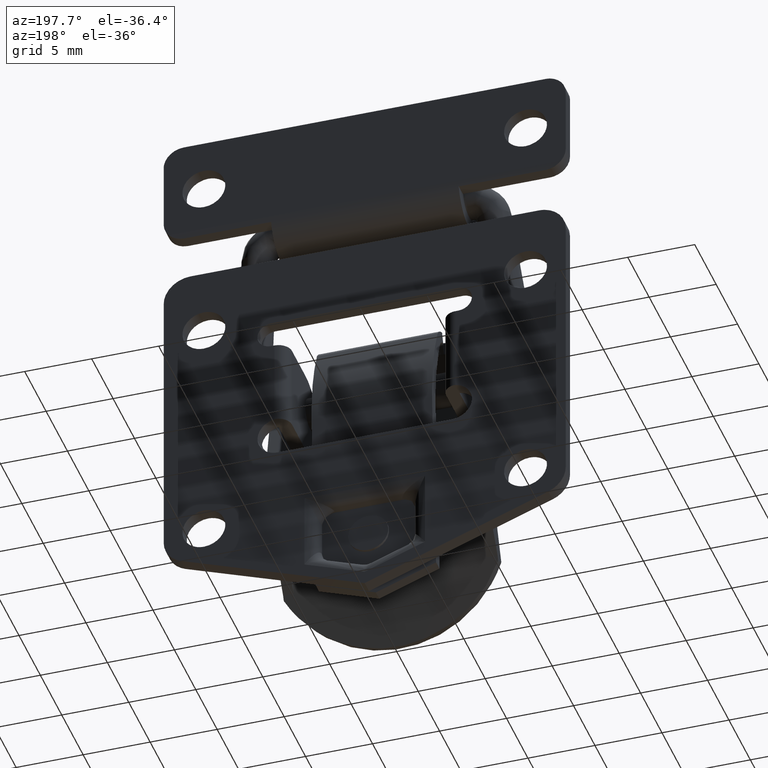
[diagram: clean part render]
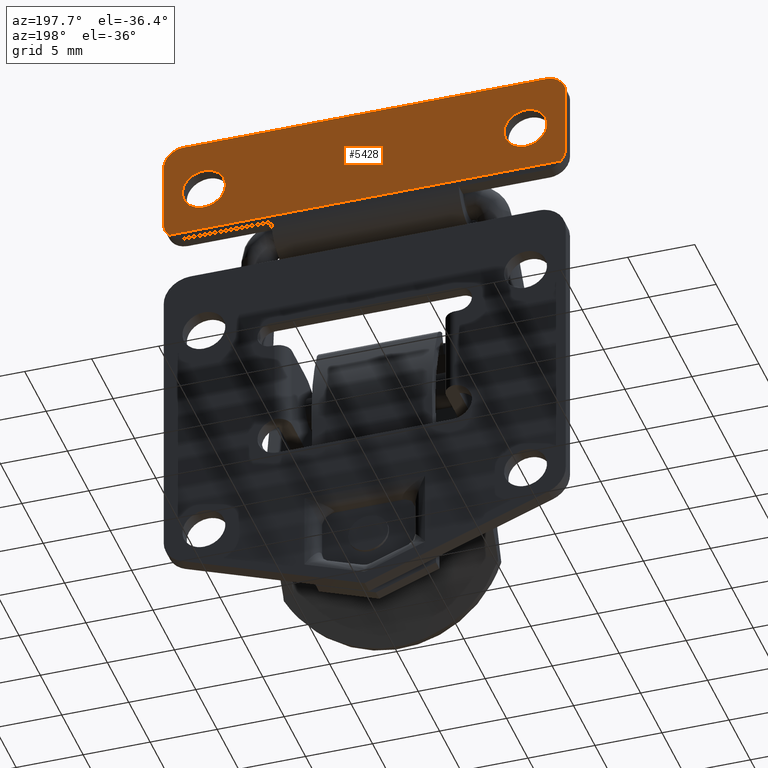
[diagram: same view with one face highlighted and labeled with its STEP entity id]
A machine part, auxiliary view. The second image highlights one B-rep face of the part: STEP entity #5428.
In plain terms, the highlighted face is a freeform B-spline surface patch.
Its self-contained STEP definition (entity closure, byte-faithful):
#4347=CARTESIAN_POINT('',(2.499999999999945,-12.0,5.350000000000000));
#4348=VERTEX_POINT('',#4347);
#4349=CARTESIAN_POINT('',(2.499999999999945,-13.595067733970041,3.875534553202281));
#4350=VERTEX_POINT('',#4349);
#4351=CARTESIAN_POINT('',(2.499999999999945,-12.0,5.350000000000000));
#4352=CARTESIAN_POINT('',(2.499999999999945,-13.479024786582951,5.350000000000000));
#4353=CARTESIAN_POINT('',(2.499999999999945,-13.595067733970035,3.875534553202281));
#4361=(BOUNDED_CURVE()B_SPLINE_CURVE(2,(#4351,#4352,#4353),.UNSPECIFIED.,.F.,.U.)B_SPLINE_CURVE_WITH_KNOTS((3,3),(0.0,0.236331300624657),.UNSPECIFIED.)CURVE()GEOMETRIC_REPRESENTATION_ITEM()RATIONAL_B_SPLINE_CURVE((1.0,0.723120658614698,0.969723356154892))REPRESENTATION_ITEM(''));
#4362=EDGE_CURVE('',#4348,#4350,#4361,.T.);
#4403=CARTESIAN_POINT('',(2.499999999999945,-10.404932266029970,3.624465446797719));
#4404=VERTEX_POINT('',#4403);
#4410=CARTESIAN_POINT('',(2.499999999999945,-10.404932266029968,3.624465446797719));
#4411=CARTESIAN_POINT('',(2.499999999999945,-10.400000000000002,3.687135828749825));
#4412=CARTESIAN_POINT('',(2.499999999999945,-10.400000000000000,3.750000000000000));
#4413=CARTESIAN_POINT('',(2.499999999999945,-10.400000000000000,5.349999999999999));
#4414=CARTESIAN_POINT('',(2.499999999999945,-12.0,5.350000000000000));
#4422=(BOUNDED_CURVE()B_SPLINE_CURVE(2,(#4410,#4411,#4412,#4413,#4414),.UNSPECIFIED.,.F.,.U.)B_SPLINE_CURVE_WITH_KNOTS((3,2,3),(0.736331300624657,0.750000000000000,1.0),.UNSPECIFIED.)CURVE()GEOMETRIC_REPRESENTATION_ITEM()RATIONAL_B_SPLINE_CURVE((0.969723356154891,0.983986122571850,1.0,0.707106781186548,1.0))REPRESENTATION_ITEM(''));
#4423=EDGE_CURVE('',#4404,#4348,#4422,.T.);
#4446=CARTESIAN_POINT('',(2.499999999999945,-12.0,2.150000000000000));
#4447=VERTEX_POINT('',#4446);
#4448=CARTESIAN_POINT('',(2.499999999999945,-13.595067733970035,3.875534553202281));
#4449=CARTESIAN_POINT('',(2.499999999999945,-13.600000000000001,3.812864171250176));
#4450=CARTESIAN_POINT('',(2.499999999999945,-13.600000000000000,3.750000000000000));
#4451=CARTESIAN_POINT('',(2.499999999999945,-13.600000000000003,2.150000000000000));
#4452=CARTESIAN_POINT('',(2.499999999999945,-12.0,2.150000000000000));
#4460=(BOUNDED_CURVE()B_SPLINE_CURVE(2,(#4448,#4449,#4450,#4451,#4452),.UNSPECIFIED.,.F.,.U.)B_SPLINE_CURVE_WITH_KNOTS((3,2,3),(0.236331300624657,0.250000000000000,0.500000000000000),.UNSPECIFIED.)CURVE()GEOMETRIC_REPRESENTATION_ITEM()RATIONAL_B_SPLINE_CURVE((0.969723356154892,0.983986122571850,1.0,0.707106781186548,1.0))REPRESENTATION_ITEM(''));
#4461=EDGE_CURVE('',#4350,#4447,#4460,.T.);
#4463=CARTESIAN_POINT('',(2.499999999999945,-12.0,2.150000000000000));
#4464=CARTESIAN_POINT('',(2.499999999999946,-10.520975213417056,2.150000000000000));
#4465=CARTESIAN_POINT('',(2.499999999999945,-10.404932266029963,3.624465446797719));
#4473=(BOUNDED_CURVE()B_SPLINE_CURVE(2,(#4463,#4464,#4465),.UNSPECIFIED.,.F.,.U.)B_SPLINE_CURVE_WITH_KNOTS((3,3),(0.500000000000000,0.736331300624657),.UNSPECIFIED.)CURVE()GEOMETRIC_REPRESENTATION_ITEM()RATIONAL_B_SPLINE_CURVE((1.0,0.723120658614698,0.969723356154891))REPRESENTATION_ITEM(''));
#4474=EDGE_CURVE('',#4447,#4404,#4473,.T.);
#4529=CARTESIAN_POINT('',(2.499999999999945,12.0,5.350000000000000));
#4530=VERTEX_POINT('',#4529);
#4531=CARTESIAN_POINT('',(2.499999999999945,10.404932266029970,3.875534553202281));
#4532=VERTEX_POINT('',#4531);
#4533=CARTESIAN_POINT('',(2.499999999999945,12.0,5.350000000000000));
#4534=CARTESIAN_POINT('',(2.499999999999945,10.520975213417053,5.350000000000000));
#4535=CARTESIAN_POINT('',(2.499999999999945,10.404932266029965,3.875534553202281));
#4543=(BOUNDED_CURVE()B_SPLINE_CURVE(2,(#4533,#4534,#4535),.UNSPECIFIED.,.F.,.U.)B_SPLINE_CURVE_WITH_KNOTS((3,3),(0.0,0.236331300624657),.UNSPECIFIED.)CURVE()GEOMETRIC_REPRESENTATION_ITEM()RATIONAL_B_SPLINE_CURVE((1.0,0.723120658614698,0.969723356154892))REPRESENTATION_ITEM(''));
#4544=EDGE_CURVE('',#4530,#4532,#4543,.T.);
#4585=CARTESIAN_POINT('',(2.499999999999945,13.595067733970041,3.624465446797719));
#4586=VERTEX_POINT('',#4585);
#4592=CARTESIAN_POINT('',(2.499999999999945,13.595067733970037,3.624465446797719));
#4593=CARTESIAN_POINT('',(2.499999999999945,13.600000000000003,3.687135828749825));
#4594=CARTESIAN_POINT('',(2.499999999999945,13.600000000000000,3.750000000000000));
#4595=CARTESIAN_POINT('',(2.499999999999945,13.600000000000003,5.349999999999999));
#4596=CARTESIAN_POINT('',(2.499999999999945,12.0,5.350000000000000));
#4604=(BOUNDED_CURVE()B_SPLINE_CURVE(2,(#4592,#4593,#4594,#4595,#4596),.UNSPECIFIED.,.F.,.U.)B_SPLINE_CURVE_WITH_KNOTS((3,2,3),(0.736331300624657,0.750000000000000,1.0),.UNSPECIFIED.)CURVE()GEOMETRIC_REPRESENTATION_ITEM()RATIONAL_B_SPLINE_CURVE((0.969723356154891,0.983986122571850,1.0,0.707106781186548,1.0))REPRESENTATION_ITEM(''));
#4605=EDGE_CURVE('',#4586,#4530,#4604,.T.);
#4628=CARTESIAN_POINT('',(2.499999999999945,12.0,2.150000000000000));
#4629=VERTEX_POINT('',#4628);
#4630=CARTESIAN_POINT('',(2.499999999999945,10.404932266029965,3.875534553202281));
#4631=CARTESIAN_POINT('',(2.499999999999945,10.400000000000002,3.812864171250176));
#4632=CARTESIAN_POINT('',(2.499999999999945,10.400000000000000,3.750000000000000));
#4633=CARTESIAN_POINT('',(2.499999999999945,10.400000000000000,2.150000000000000));
#4634=CARTESIAN_POINT('',(2.499999999999945,12.0,2.150000000000000));
#4642=(BOUNDED_CURVE()B_SPLINE_CURVE(2,(#4630,#4631,#4632,#4633,#4634),.UNSPECIFIED.,.F.,.U.)B_SPLINE_CURVE_WITH_KNOTS((3,2,3),(0.236331300624657,0.250000000000000,0.500000000000000),.UNSPECIFIED.)CURVE()GEOMETRIC_REPRESENTATION_ITEM()RATIONAL_B_SPLINE_CURVE((0.969723356154892,0.983986122571850,1.0,0.707106781186548,1.0))REPRESENTATION_ITEM(''));
#4643=EDGE_CURVE('',#4532,#4629,#4642,.T.);
#4645=CARTESIAN_POINT('',(2.499999999999945,12.0,2.150000000000000));
#4646=CARTESIAN_POINT('',(2.499999999999946,13.479024786582945,2.150000000000000));
#4647=CARTESIAN_POINT('',(2.499999999999945,13.595067733970037,3.624465446797719));
#4655=(BOUNDED_CURVE()B_SPLINE_CURVE(2,(#4645,#4646,#4647),.UNSPECIFIED.,.F.,.U.)B_SPLINE_CURVE_WITH_KNOTS((3,3),(0.500000000000000,0.736331300624657),.UNSPECIFIED.)CURVE()GEOMETRIC_REPRESENTATION_ITEM()RATIONAL_B_SPLINE_CURVE((1.0,0.723120658614698,0.969723356154891))REPRESENTATION_ITEM(''));
#4656=EDGE_CURVE('',#4629,#4586,#4655,.T.);
#4724=CARTESIAN_POINT('',(2.499999999999915,-15.0,6.250000000000000));
#4725=VERTEX_POINT('',#4724);
#4731=CARTESIAN_POINT('',(2.499999999999915,-13.500000000000000,7.750000000000000));
#4732=VERTEX_POINT('',#4731);
#4733=CARTESIAN_POINT('',(2.499999999999915,-13.500000000000000,7.750000000000000));
#4734=CARTESIAN_POINT('',(2.499999999999915,-14.999999999999995,7.750000000000001));
#4735=CARTESIAN_POINT('',(2.499999999999915,-15.0,6.250000000000000));
#4743=(BOUNDED_CURVE()B_SPLINE_CURVE(2,(#4733,#4734,#4735),.UNSPECIFIED.,.F.,.U.)CURVE()GEOMETRIC_REPRESENTATION_ITEM()QUASI_UNIFORM_CURVE()RATIONAL_B_SPLINE_CURVE((1.0,0.707106781186548,1.0))REPRESENTATION_ITEM(''));
#4744=EDGE_CURVE('',#4732,#4725,#4743,.T.);
#4768=CARTESIAN_POINT('',(2.499999999999915,-15.0,1.250000000000084));
#4769=VERTEX_POINT('',#4768);
#4770=CARTESIAN_POINT('',(2.499999999999915,-14.618033988749900,0.250000000000000));
#4771=VERTEX_POINT('',#4770);
#4772=CARTESIAN_POINT('',(2.499999999999945,-15.0,1.250000000000084));
#4773=CARTESIAN_POINT('',(2.499999999999945,-14.999999999999998,0.677050983124893));
#4774=CARTESIAN_POINT('',(2.499999999999915,-14.618033988749900,0.250000000000000));
#4782=(BOUNDED_CURVE()B_SPLINE_CURVE(2,(#4772,#4773,#4774),.UNSPECIFIED.,.F.,.U.)CURVE()GEOMETRIC_REPRESENTATION_ITEM()QUASI_UNIFORM_CURVE()RATIONAL_B_SPLINE_CURVE((1.0,0.934172358962709,1.0))REPRESENTATION_ITEM(''));
#4783=EDGE_CURVE('',#4769,#4771,#4782,.T.);
#4987=CARTESIAN_POINT('',(2.499999999999915,13.500000000000000,7.750000000000000));
#4988=VERTEX_POINT('',#4987);
#4994=CARTESIAN_POINT('',(2.499999999999915,15.0,6.250000000000000));
#4995=VERTEX_POINT('',#4994);
#4996=CARTESIAN_POINT('',(2.499999999999915,15.0,6.250000000000000));
#4997=CARTESIAN_POINT('',(2.499999999999915,14.999999999999995,7.750000000000001));
#4998=CARTESIAN_POINT('',(2.499999999999915,13.500000000000000,7.750000000000000));
#5006=(BOUNDED_CURVE()B_SPLINE_CURVE(2,(#4996,#4997,#4998),.UNSPECIFIED.,.F.,.U.)CURVE()GEOMETRIC_REPRESENTATION_ITEM()QUASI_UNIFORM_CURVE()RATIONAL_B_SPLINE_CURVE((1.0,0.707106781186548,1.0))REPRESENTATION_ITEM(''));
#5007=EDGE_CURVE('',#4995,#4988,#5006,.T.);
#5033=CARTESIAN_POINT('',(2.499999999999915,14.618033988749760,0.250000000000000));
#5034=VERTEX_POINT('',#5033);
#5074=CARTESIAN_POINT('',(2.499999999999915,15.0,1.250000000000086));
#5075=VERTEX_POINT('',#5074);
#5081=CARTESIAN_POINT('',(2.499999999999915,14.618033988749760,0.250000000000000));
#5082=CARTESIAN_POINT('',(2.499999999999915,15.0,0.677050983124840));
#5083=CARTESIAN_POINT('',(2.499999999999915,15.0,1.250000000000086));
#5091=(BOUNDED_CURVE()B_SPLINE_CURVE(2,(#5081,#5082,#5083),.UNSPECIFIED.,.F.,.U.)CURVE()GEOMETRIC_REPRESENTATION_ITEM()QUASI_UNIFORM_CURVE()RATIONAL_B_SPLINE_CURVE((1.0,0.934172358962697,1.0))REPRESENTATION_ITEM(''));
#5092=EDGE_CURVE('',#5034,#5075,#5091,.T.);
#5331=CARTESIAN_POINT('',(2.499999999999915,14.618033988749760,0.250000000000000));
#5332=CARTESIAN_POINT('',(2.499999999999915,-14.618033988749900,0.250000000000000));
#5333=QUASI_UNIFORM_CURVE('',1,(#5331,#5332),.UNSPECIFIED.,.F.,.U.);
#5334=EDGE_CURVE('',#5034,#4771,#5333,.T.);
#5353=CARTESIAN_POINT('',(2.499999999999915,13.500000000000000,7.750000000000000));
#5354=CARTESIAN_POINT('',(2.499999999999915,-13.500000000000000,7.750000000000000));
#5355=QUASI_UNIFORM_CURVE('',1,(#5353,#5354),.UNSPECIFIED.,.F.,.U.);
#5356=EDGE_CURVE('',#4988,#4732,#5355,.T.);
#5393=CARTESIAN_POINT('',(2.499999999999915,-16.498499941854181,-0.124624985463545));
#5394=CARTESIAN_POINT('',(2.499999999999915,-16.498499941854181,8.124625186629221));
#5395=CARTESIAN_POINT('',(2.499999999999915,16.498500746516889,-0.124624985463545));
#5396=CARTESIAN_POINT('',(2.499999999999915,16.498500746516889,8.124625186629221));
#5397=B_SPLINE_SURFACE_WITH_KNOTS('',1,1,((#5393,#5395),(#5394,#5396)),.UNSPECIFIED.,.F.,.F.,.U.,(2,2),(2,2),(0.0,8.249250172092765),(0.0,32.997000688371060),.UNSPECIFIED.);
#5398=ORIENTED_EDGE('',*,*,#5334,.F.);
#5399=ORIENTED_EDGE('',*,*,#5092,.T.);
#5400=CARTESIAN_POINT('',(2.499999999999915,15.0,6.250000000000000));
#5401=CARTESIAN_POINT('',(2.499999999999915,15.0,1.250000000000086));
#5402=QUASI_UNIFORM_CURVE('',1,(#5400,#5401),.UNSPECIFIED.,.F.,.U.);
#5403=EDGE_CURVE('',#4995,#5075,#5402,.T.);
#5404=ORIENTED_EDGE('',*,*,#5403,.F.);
#5405=ORIENTED_EDGE('',*,*,#5007,.T.);
#5406=ORIENTED_EDGE('',*,*,#5356,.T.);
#5407=ORIENTED_EDGE('',*,*,#4744,.T.);
#5408=CARTESIAN_POINT('',(2.499999999999915,-15.0,6.250000000000000));
#5409=CARTESIAN_POINT('',(2.499999999999915,-15.0,1.250000000000084));
#5410=QUASI_UNIFORM_CURVE('',1,(#5408,#5409),.UNSPECIFIED.,.F.,.U.);
#5411=EDGE_CURVE('',#4725,#4769,#5410,.T.);
#5412=ORIENTED_EDGE('',*,*,#5411,.T.);
#5413=ORIENTED_EDGE('',*,*,#4783,.T.);
#5414=EDGE_LOOP('',(#5398,#5399,#5404,#5405,#5406,#5407,#5412,#5413));
#5415=FACE_OUTER_BOUND('',#5414,.T.);
#5416=ORIENTED_EDGE('',*,*,#4656,.F.);
#5417=ORIENTED_EDGE('',*,*,#4643,.F.);
#5418=ORIENTED_EDGE('',*,*,#4544,.F.);
#5419=ORIENTED_EDGE('',*,*,#4605,.F.);
#5420=EDGE_LOOP('',(#5416,#5417,#5418,#5419));
#5421=FACE_BOUND('',#5420,.T.);
#5422=ORIENTED_EDGE('',*,*,#4474,.F.);
#5423=ORIENTED_EDGE('',*,*,#4461,.F.);
#5424=ORIENTED_EDGE('',*,*,#4362,.F.);
#5425=ORIENTED_EDGE('',*,*,#4423,.F.);
#5426=EDGE_LOOP('',(#5422,#5423,#5424,#5425));
#5427=FACE_BOUND('',#5426,.T.);
#5428=ADVANCED_FACE('',(#5415,#5421,#5427),#5397,.F.);